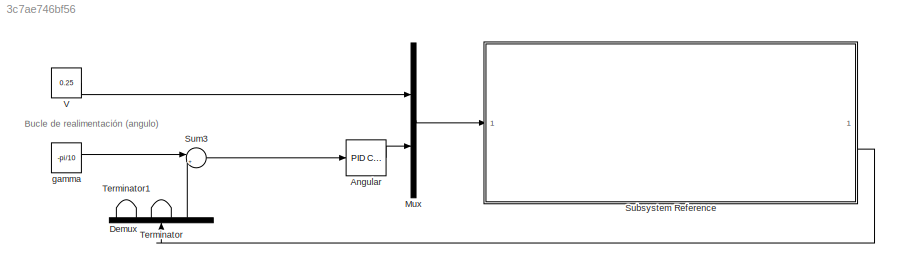
MODEL slx_3c7ae746bf56
KIND model
CONFIG AbsTol = auto
CONFIG EnableMultiTasking = on
CONFIG FixedStep = auto
CONFIG MaxStep = auto
CONFIG MinStep = auto
CONFIG RelTol = 1e-3
CONFIG SampleTimeConstraint = Unconstrained
CONFIG SolverName = FixedStepAuto
CONFIG StartTime = 0.0
CONFIG StopTime = 40
WORKSPACE source: mxarray member
WORKSPACE d = 0.15
BLOCK [Reference] Angular  REF=slpidlib/PID Controller
  LibrarySourceBlock = simulink/Continuous/PID Controller
  SourceBlock = slpidlib/PID Controller
  SourceType = PID 1dof
BLOCK [Demux] Demux
  NameLocation = right
  Outputs = 3
BLOCK [Mux] Mux
  DisplayOption = bar
  Inputs = 2
BLOCK [SubSystem] Subsystem Reference
  ReferencedSubsystem = PieroCalculos
BLOCK [Sum] Sum3
  Inputs = |+-
BLOCK [Terminator] Terminator
  NameLocation = right
BLOCK [Terminator] Terminator1
  NameLocation = right
BLOCK [Constant] V
  Value = 0.25
BLOCK [Constant] gamma
  Value = -pi/10
ANNOTATION (root): Bucle de realimentación (angulo)
LINE Angular:1 -> Mux:2
LINE Demux:3 -> Sum3:2
LINE Mux:1 -> Subsystem Reference:1
LINE Subsystem Reference:2 -> Demux:1
LINE Sum3:1 -> Angular:1
LINE V:1 -> Mux:1
LINE gamma:1 -> Sum3:1
